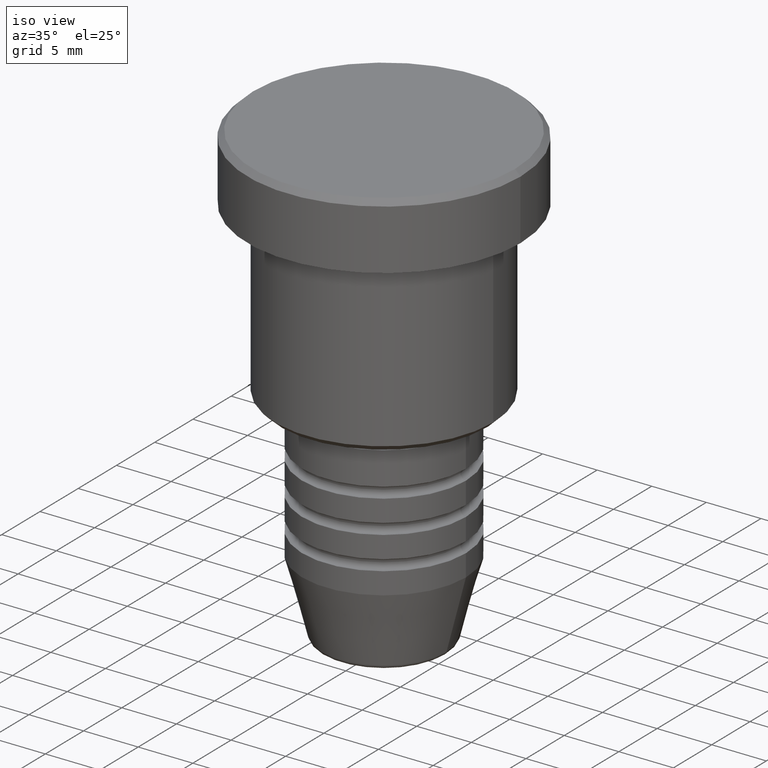
[diagram: clean part render]
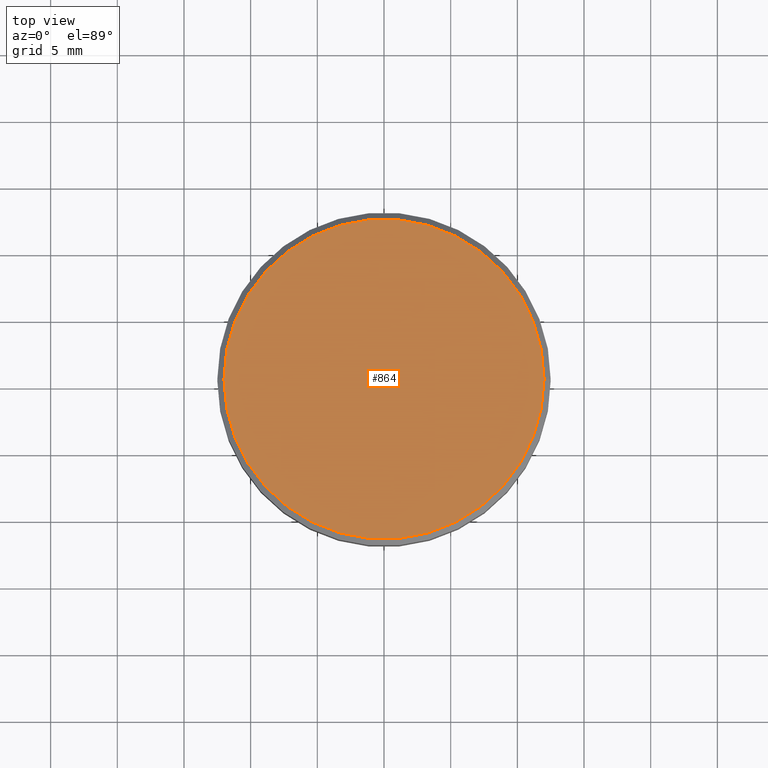
[diagram: tour spotlight — one face highlighted and labeled with its STEP entity id]
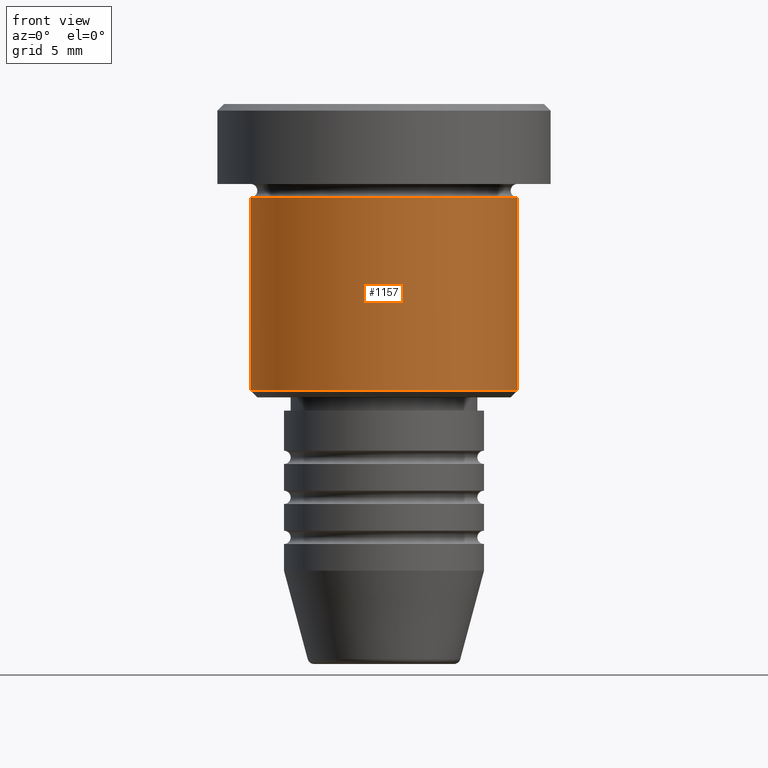
[diagram: tour spotlight — one face highlighted and labeled with its STEP entity id]
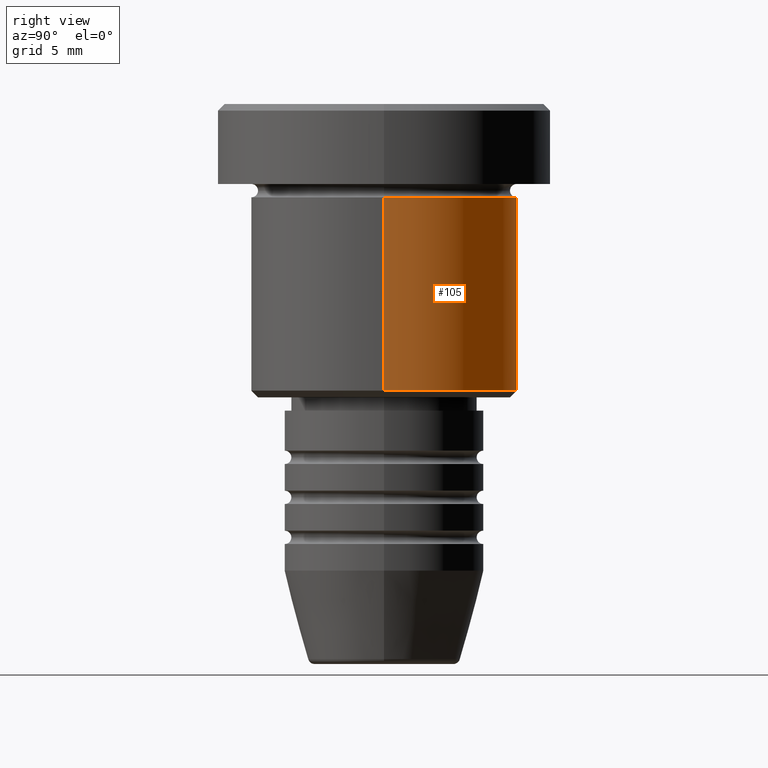
[diagram: tour spotlight — one face highlighted and labeled with its STEP entity id]
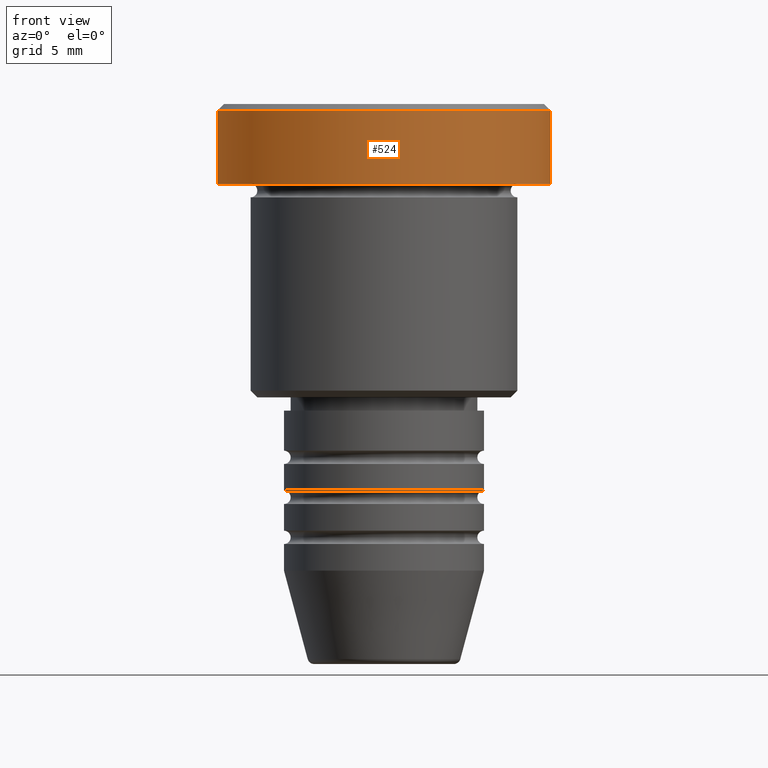
[diagram: tour spotlight — one face highlighted and labeled with its STEP entity id]
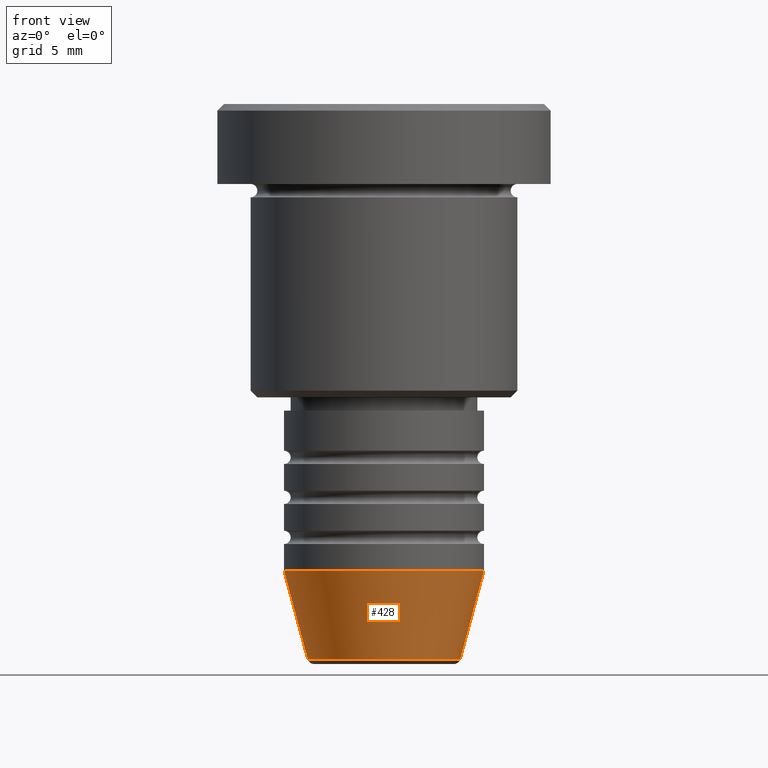
[diagram: tour spotlight — one face highlighted and labeled with its STEP entity id]
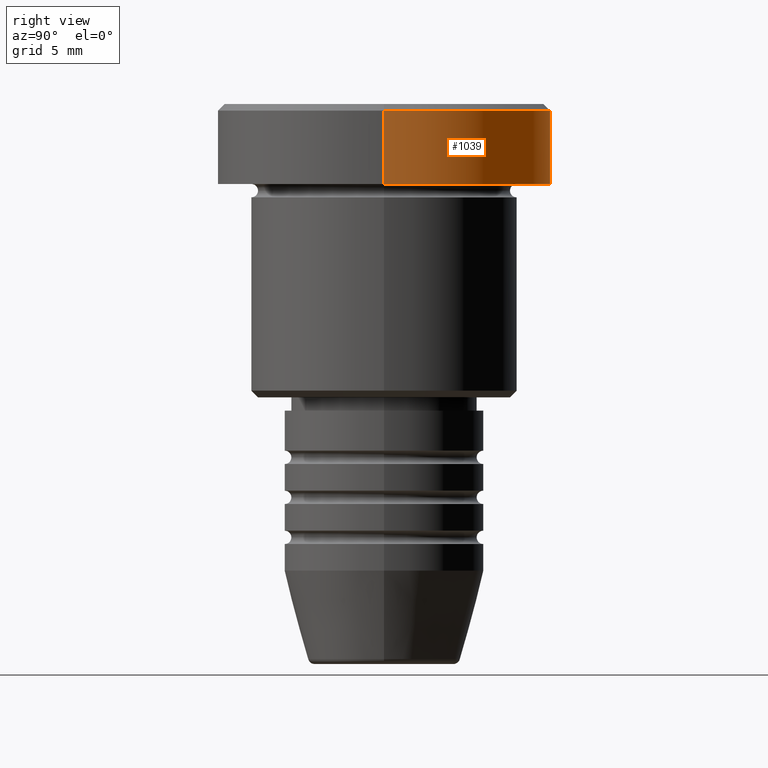
[diagram: tour spotlight — one face highlighted and labeled with its STEP entity id]
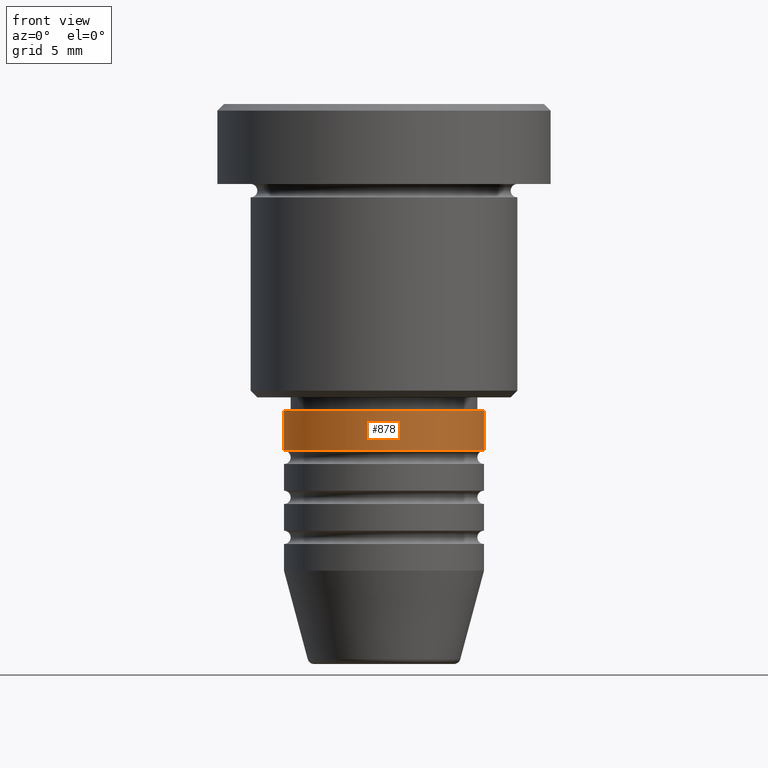
[diagram: tour spotlight — one face highlighted and labeled with its STEP entity id]
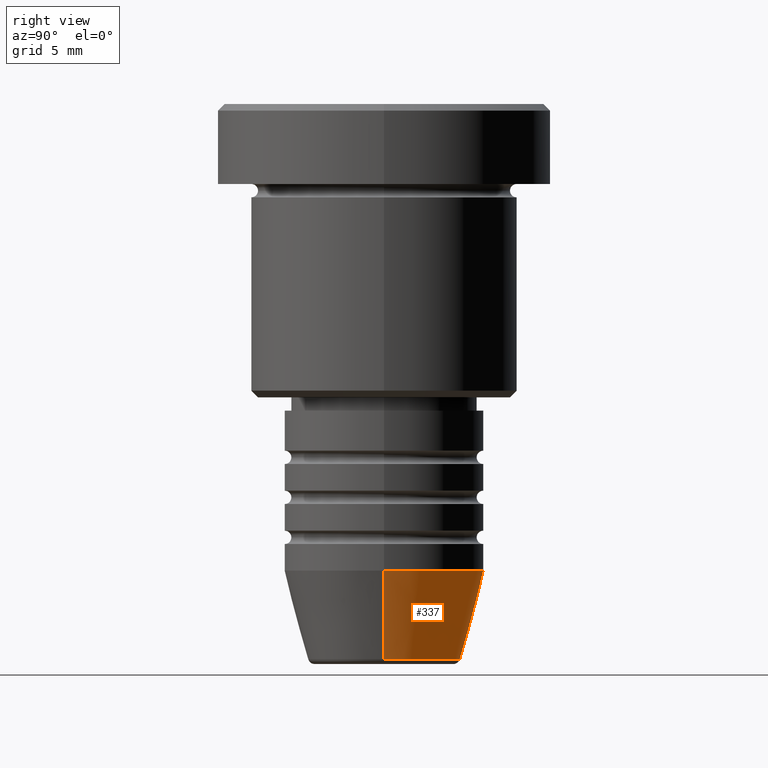
[diagram: tour spotlight — one face highlighted and labeled with its STEP entity id]
A machine part: a face-by-face anatomy tour. The part has 43 B-rep faces; the first image is the clean iso view, then the 8 largest visible faces are spotlighted one at a time (largest first), each with its STEP entity span.

Face 1 — top view, entity #864. In plain terms, the highlighted planar face has unit normal (0, -0, 1).
Definition (entity closure, byte-faithful):
#117 = CARTESIAN_POINT ( 'NONE',  ( 0.000000000000000000, 0.000000000000000000, 0.000000000000000000 ) ) ;
#198 = PLANE ( 'NONE',  #889 ) ;
#219 = CARTESIAN_POINT ( 'NONE',  ( 0.000000000000000000, 0.000000000000000000, 0.000000000000000000 ) ) ;
#248 = EDGE_LOOP ( 'NONE', ( #1085, #763 ) ) ;
#304 = DIRECTION ( 'NONE',  ( 0.000000000000000000, -0.000000000000000000, 1.000000000000000000 ) ) ;
#311 = VERTEX_POINT ( 'NONE', #771 ) ;
#325 = EDGE_CURVE ( 'NONE', #785, #311, #423, .T. ) ;
#327 = DIRECTION ( 'NONE',  ( -0.000000000000000000, -0.000000000000000000, 1.000000000000000000 ) ) ;
#329 = EDGE_CURVE ( 'NONE', #311, #785, #390, .T. ) ;
#390 = CIRCLE ( 'NONE', #556, 11.99999999999998224 ) ;
#410 = CARTESIAN_POINT ( 'NONE',  ( -11.99999999999998224, 0.000000000000000000, 0.000000000000000000 ) ) ;
#423 = CIRCLE ( 'NONE', #773, 11.99999999999998224 ) ;
#508 = DIRECTION ( 'NONE',  ( 1.000000000000000000, 0.000000000000000000, 0.000000000000000000 ) ) ;
#556 = AXIS2_PLACEMENT_3D ( 'NONE', #604, #327, #508 ) ;
#604 = CARTESIAN_POINT ( 'NONE',  ( 0.000000000000000000, 0.000000000000000000, 0.000000000000000000 ) ) ;
#610 = DIRECTION ( 'NONE',  ( -0.000000000000000000, -0.000000000000000000, 1.000000000000000000 ) ) ;
#670 = DIRECTION ( 'NONE',  ( 1.000000000000000000, 0.000000000000000000, 0.000000000000000000 ) ) ;
#682 = DIRECTION ( 'NONE',  ( 1.000000000000000000, 0.000000000000000000, 0.000000000000000000 ) ) ;
#763 = ORIENTED_EDGE ( 'NONE', *, *, #329, .T. ) ;
#771 = CARTESIAN_POINT ( 'NONE',  ( 11.99999999999998224, 1.500192328955506748E-15, 0.000000000000000000 ) ) ;
#773 = AXIS2_PLACEMENT_3D ( 'NONE', #219, #610, #682 ) ;
#785 = VERTEX_POINT ( 'NONE', #410 ) ;
#864 = ADVANCED_FACE ( 'NONE', ( #934 ), #198, .T. ) ;
#889 = AXIS2_PLACEMENT_3D ( 'NONE', #117, #304, #670 ) ;
#934 = FACE_OUTER_BOUND ( 'NONE', #248, .T. ) ;
#1085 = ORIENTED_EDGE ( 'NONE', *, *, #325, .T. ) ;

Face 2 — front view, entity #1157. In plain terms, the highlighted cylindrical surface (partial cylindrical patch) has radius 10 mm, axis along (-0, -0, 1).
Definition (entity closure, byte-faithful):
#64 = LINE ( 'NONE', #718, #628 ) ;
#66 = CARTESIAN_POINT ( 'NONE',  ( 0.000000000000000000, 0.000000000000000000, 0.000000000000000000 ) ) ;
#100 = DIRECTION ( 'NONE',  ( -0.000000000000000000, -0.000000000000000000, 1.000000000000000000 ) ) ;
#169 = DIRECTION ( 'NONE',  ( 1.000000000000000000, 0.000000000000000000, 0.000000000000000000 ) ) ;
#220 = ORIENTED_EDGE ( 'NONE', *, *, #1140, .F. ) ;
#226 = CARTESIAN_POINT ( 'NONE',  ( 10.00000000000000000, 0.000000000000000000, -21.49999999999999645 ) ) ;
#246 = EDGE_CURVE ( 'NONE', #374, #252, #64, .T. ) ;
#252 = VERTEX_POINT ( 'NONE', #725 ) ;
#253 = EDGE_CURVE ( 'NONE', #588, #252, #575, .T. ) ;
#257 = CARTESIAN_POINT ( 'NONE',  ( -10.00000000000000000, 1.224646799147353256E-15, -21.49999999999999645 ) ) ;
#320 = VECTOR ( 'NONE', #1178, 1000.000000000000000 ) ;
#374 = VERTEX_POINT ( 'NONE', #226 ) ;
#438 = CARTESIAN_POINT ( 'NONE',  ( -10.00000000000000000, 1.224646799147353256E-15, 0.000000000000000000 ) ) ;
#445 = LINE ( 'NONE', #438, #320 ) ;
#490 = DIRECTION ( 'NONE',  ( -1.000000000000000000, 0.000000000000000000, 0.000000000000000000 ) ) ;
#514 = AXIS2_PLACEMENT_3D ( 'NONE', #66, #1173, #169 ) ;
#561 = VERTEX_POINT ( 'NONE', #257 ) ;
#575 = CIRCLE ( 'NONE', #811, 10.00000000000000000 ) ;
#588 = VERTEX_POINT ( 'NONE', #1166 ) ;
#628 = VECTOR ( 'NONE', #100, 1000.000000000000000 ) ;
#650 = FACE_OUTER_BOUND ( 'NONE', #1104, .T. ) ;
#718 = CARTESIAN_POINT ( 'NONE',  ( 10.00000000000000000, 0.000000000000000000, 0.000000000000000000 ) ) ;
#725 = CARTESIAN_POINT ( 'NONE',  ( 10.00000000000000000, 0.000000000000000000, -6.999999999999996447 ) ) ;
#762 = AXIS2_PLACEMENT_3D ( 'NONE', #877, #1021, #490 ) ;
#811 = AXIS2_PLACEMENT_3D ( 'NONE', #819, #1094, #894 ) ;
#818 = ORIENTED_EDGE ( 'NONE', *, *, #246, .T. ) ;
#819 = CARTESIAN_POINT ( 'NONE',  ( 0.000000000000000000, 0.000000000000000000, -6.999999999999996447 ) ) ;
#877 = CARTESIAN_POINT ( 'NONE',  ( 0.000000000000000000, 0.000000000000000000, -21.49999999999999645 ) ) ;
#894 = DIRECTION ( 'NONE',  ( 1.000000000000000000, 0.000000000000000000, 0.000000000000000000 ) ) ;
#992 = EDGE_CURVE ( 'NONE', #561, #374, #1110, .T. ) ;
#1021 = DIRECTION ( 'NONE',  ( -0.000000000000000000, -0.000000000000000000, 1.000000000000000000 ) ) ;
#1073 = ORIENTED_EDGE ( 'NONE', *, *, #992, .T. ) ;
#1094 = DIRECTION ( 'NONE',  ( -0.000000000000000000, -0.000000000000000000, 1.000000000000000000 ) ) ;
#1104 = EDGE_LOOP ( 'NONE', ( #220, #1073, #818, #1106 ) ) ;
#1106 = ORIENTED_EDGE ( 'NONE', *, *, #253, .F. ) ;
#1110 = CIRCLE ( 'NONE', #762, 10.00000000000000000 ) ;
#1140 = EDGE_CURVE ( 'NONE', #561, #588, #445, .T. ) ;
#1154 = CYLINDRICAL_SURFACE ( 'NONE', #514, 10.00000000000000000 ) ;
#1157 = ADVANCED_FACE ( 'NONE', ( #650 ), #1154, .T. ) ;
#1166 = CARTESIAN_POINT ( 'NONE',  ( -10.00000000000000000, 1.224646799147353256E-15, -6.999999999999996447 ) ) ;
#1173 = DIRECTION ( 'NONE',  ( -0.000000000000000000, -0.000000000000000000, 1.000000000000000000 ) ) ;
#1178 = DIRECTION ( 'NONE',  ( -0.000000000000000000, -0.000000000000000000, 1.000000000000000000 ) ) ;

Face 3 — right view, entity #105. In plain terms, the highlighted cylindrical surface (partial cylindrical patch) has radius 10 mm, axis along (-0, -0, 1).
Definition (entity closure, byte-faithful):
#26 = CIRCLE ( 'NONE', #558, 10.00000000000000000 ) ;
#64 = LINE ( 'NONE', #718, #628 ) ;
#92 = DIRECTION ( 'NONE',  ( -0.000000000000000000, -0.000000000000000000, 1.000000000000000000 ) ) ;
#100 = DIRECTION ( 'NONE',  ( -0.000000000000000000, -0.000000000000000000, 1.000000000000000000 ) ) ;
#105 = ADVANCED_FACE ( 'NONE', ( #661 ), #397, .T. ) ;
#168 = CARTESIAN_POINT ( 'NONE',  ( 0.000000000000000000, 0.000000000000000000, -6.999999999999996447 ) ) ;
#226 = CARTESIAN_POINT ( 'NONE',  ( 10.00000000000000000, 0.000000000000000000, -21.49999999999999645 ) ) ;
#239 = EDGE_CURVE ( 'NONE', #374, #561, #1144, .T. ) ;
#246 = EDGE_CURVE ( 'NONE', #374, #252, #64, .T. ) ;
#252 = VERTEX_POINT ( 'NONE', #725 ) ;
#257 = CARTESIAN_POINT ( 'NONE',  ( -10.00000000000000000, 1.224646799147353256E-15, -21.49999999999999645 ) ) ;
#259 = ORIENTED_EDGE ( 'NONE', *, *, #239, .T. ) ;
#267 = ORIENTED_EDGE ( 'NONE', *, *, #1140, .T. ) ;
#268 = DIRECTION ( 'NONE',  ( -0.000000000000000000, -0.000000000000000000, 1.000000000000000000 ) ) ;
#320 = VECTOR ( 'NONE', #1178, 1000.000000000000000 ) ;
#374 = VERTEX_POINT ( 'NONE', #226 ) ;
#379 = DIRECTION ( 'NONE',  ( -0.000000000000000000, -0.000000000000000000, 1.000000000000000000 ) ) ;
#397 = CYLINDRICAL_SURFACE ( 'NONE', #848, 10.00000000000000000 ) ;
#438 = CARTESIAN_POINT ( 'NONE',  ( -10.00000000000000000, 1.224646799147353256E-15, 0.000000000000000000 ) ) ;
#445 = LINE ( 'NONE', #438, #320 ) ;
#558 = AXIS2_PLACEMENT_3D ( 'NONE', #168, #268, #642 ) ;
#561 = VERTEX_POINT ( 'NONE', #257 ) ;
#588 = VERTEX_POINT ( 'NONE', #1166 ) ;
#628 = VECTOR ( 'NONE', #100, 1000.000000000000000 ) ;
#642 = DIRECTION ( 'NONE',  ( 1.000000000000000000, 0.000000000000000000, 0.000000000000000000 ) ) ;
#661 = FACE_OUTER_BOUND ( 'NONE', #1116, .T. ) ;
#718 = CARTESIAN_POINT ( 'NONE',  ( 10.00000000000000000, 0.000000000000000000, 0.000000000000000000 ) ) ;
#725 = CARTESIAN_POINT ( 'NONE',  ( 10.00000000000000000, 0.000000000000000000, -6.999999999999996447 ) ) ;
#832 = CARTESIAN_POINT ( 'NONE',  ( 0.000000000000000000, 0.000000000000000000, 0.000000000000000000 ) ) ;
#840 = DIRECTION ( 'NONE',  ( 1.000000000000000000, 0.000000000000000000, 0.000000000000000000 ) ) ;
#848 = AXIS2_PLACEMENT_3D ( 'NONE', #832, #379, #840 ) ;
#1005 = ORIENTED_EDGE ( 'NONE', *, *, #1036, .F. ) ;
#1036 = EDGE_CURVE ( 'NONE', #252, #588, #26, .T. ) ;
#1062 = CARTESIAN_POINT ( 'NONE',  ( 0.000000000000000000, 0.000000000000000000, -21.49999999999999645 ) ) ;
#1116 = EDGE_LOOP ( 'NONE', ( #259, #267, #1005, #1182 ) ) ;
#1129 = AXIS2_PLACEMENT_3D ( 'NONE', #1062, #92, #1176 ) ;
#1140 = EDGE_CURVE ( 'NONE', #561, #588, #445, .T. ) ;
#1144 = CIRCLE ( 'NONE', #1129, 10.00000000000000000 ) ;
#1166 = CARTESIAN_POINT ( 'NONE',  ( -10.00000000000000000, 1.224646799147353256E-15, -6.999999999999996447 ) ) ;
#1176 = DIRECTION ( 'NONE',  ( -1.000000000000000000, 0.000000000000000000, 0.000000000000000000 ) ) ;
#1178 = DIRECTION ( 'NONE',  ( -0.000000000000000000, -0.000000000000000000, 1.000000000000000000 ) ) ;
#1182 = ORIENTED_EDGE ( 'NONE', *, *, #246, .F. ) ;

Face 4 — front view, entity #524. In plain terms, the highlighted cylindrical surface (partial cylindrical patch) has radius 12.5 mm, axis along (-0, -0, 1).
Definition (entity closure, byte-faithful):
#17 = DIRECTION ( 'NONE',  ( -0.000000000000000000, -0.000000000000000000, 1.000000000000000000 ) ) ;
#25 = EDGE_CURVE ( 'NONE', #545, #735, #122, .T. ) ;
#88 = CARTESIAN_POINT ( 'NONE',  ( -12.50000000000000000, 1.530808498934191521E-15, -5.999999999999996447 ) ) ;
#110 = DIRECTION ( 'NONE',  ( -0.000000000000000000, -0.000000000000000000, 1.000000000000000000 ) ) ;
#112 = VERTEX_POINT ( 'NONE', #295 ) ;
#115 = CARTESIAN_POINT ( 'NONE',  ( 0.000000000000000000, 0.000000000000000000, -5.999999999999996447 ) ) ;
#120 = ORIENTED_EDGE ( 'NONE', *, *, #1099, .T. ) ;
#122 = LINE ( 'NONE', #676, #203 ) ;
#133 = DIRECTION ( 'NONE',  ( -0.000000000000000000, -0.000000000000000000, 1.000000000000000000 ) ) ;
#141 = DIRECTION ( 'NONE',  ( 1.000000000000000000, 0.000000000000000000, 0.000000000000000000 ) ) ;
#203 = VECTOR ( 'NONE', #110, 1000.000000000000000 ) ;
#271 = CYLINDRICAL_SURFACE ( 'NONE', #411, 12.50000000000000000 ) ;
#281 = CIRCLE ( 'NONE', #871, 12.50000000000000000 ) ;
#295 = CARTESIAN_POINT ( 'NONE',  ( 12.50000000000000000, 0.000000000000000000, -5.999999999999996447 ) ) ;
#302 = CIRCLE ( 'NONE', #722, 12.50000000000000000 ) ;
#331 = CARTESIAN_POINT ( 'NONE',  ( 0.000000000000000000, 0.000000000000000000, -0.5000000000000125455 ) ) ;
#334 = VECTOR ( 'NONE', #133, 1000.000000000000000 ) ;
#347 = EDGE_CURVE ( 'NONE', #112, #772, #1141, .T. ) ;
#411 = AXIS2_PLACEMENT_3D ( 'NONE', #916, #997, #631 ) ;
#463 = ORIENTED_EDGE ( 'NONE', *, *, #25, .F. ) ;
#497 = CARTESIAN_POINT ( 'NONE',  ( 12.50000000000000000, 0.000000000000000000, -0.5000000000000125455 ) ) ;
#524 = ADVANCED_FACE ( 'NONE', ( #885 ), #271, .T. ) ;
#545 = VERTEX_POINT ( 'NONE', #88 ) ;
#571 = EDGE_LOOP ( 'NONE', ( #463, #120, #1054, #1161 ) ) ;
#607 = EDGE_CURVE ( 'NONE', #772, #735, #281, .T. ) ;
#631 = DIRECTION ( 'NONE',  ( 1.000000000000000000, 0.000000000000000000, 0.000000000000000000 ) ) ;
#676 = CARTESIAN_POINT ( 'NONE',  ( -12.50000000000000000, 1.530808498934191521E-15, 0.000000000000000000 ) ) ;
#722 = AXIS2_PLACEMENT_3D ( 'NONE', #115, #17, #843 ) ;
#735 = VERTEX_POINT ( 'NONE', #1089 ) ;
#772 = VERTEX_POINT ( 'NONE', #497 ) ;
#843 = DIRECTION ( 'NONE',  ( 1.000000000000000000, 0.000000000000000000, 0.000000000000000000 ) ) ;
#871 = AXIS2_PLACEMENT_3D ( 'NONE', #331, #957, #141 ) ;
#879 = CARTESIAN_POINT ( 'NONE',  ( 12.50000000000000000, 0.000000000000000000, 0.000000000000000000 ) ) ;
#885 = FACE_OUTER_BOUND ( 'NONE', #571, .T. ) ;
#916 = CARTESIAN_POINT ( 'NONE',  ( 0.000000000000000000, 0.000000000000000000, 0.000000000000000000 ) ) ;
#957 = DIRECTION ( 'NONE',  ( 0.000000000000000000, 0.000000000000000000, -1.000000000000000000 ) ) ;
#997 = DIRECTION ( 'NONE',  ( -0.000000000000000000, -0.000000000000000000, 1.000000000000000000 ) ) ;
#1054 = ORIENTED_EDGE ( 'NONE', *, *, #347, .T. ) ;
#1089 = CARTESIAN_POINT ( 'NONE',  ( -12.50000000000000000, 1.530808498934191521E-15, -0.5000000000000125455 ) ) ;
#1099 = EDGE_CURVE ( 'NONE', #545, #112, #302, .T. ) ;
#1141 = LINE ( 'NONE', #879, #334 ) ;
#1161 = ORIENTED_EDGE ( 'NONE', *, *, #607, .T. ) ;

Face 5 — front view, entity #428. In plain terms, the highlighted conical surface has half-angle 15 deg.
Definition (entity closure, byte-faithful):
#10 = VERTEX_POINT ( 'NONE', #308 ) ;
#35 = CARTESIAN_POINT ( 'NONE',  ( 0.000000000000000000, 0.000000000000000000, -34.99999999999999289 ) ) ;
#46 = CARTESIAN_POINT ( 'NONE',  ( -7.500000000000000000, 9.184850993605147944E-16, -34.99999999999999289 ) ) ;
#130 = VECTOR ( 'NONE', #1084, 1000.000000000000000 ) ;
#145 = AXIS2_PLACEMENT_3D ( 'NONE', #443, #1079, #284 ) ;
#254 = VECTOR ( 'NONE', #1041, 1000.000000000000000 ) ;
#274 = EDGE_CURVE ( 'NONE', #994, #369, #680, .T. ) ;
#284 = DIRECTION ( 'NONE',  ( 1.000000000000000000, 0.000000000000000000, 0.000000000000000000 ) ) ;
#291 = DIRECTION ( 'NONE',  ( 1.000000000000000000, 0.000000000000000000, 0.000000000000000000 ) ) ;
#293 = EDGE_CURVE ( 'NONE', #1070, #10, #358, .T. ) ;
#308 = CARTESIAN_POINT ( 'NONE',  ( 7.500000000000000000, 0.000000000000000000, -34.99999999999999289 ) ) ;
#309 = FACE_OUTER_BOUND ( 'NONE', #526, .T. ) ;
#335 = CONICAL_SURFACE ( 'NONE', #812, 7.500000000000000000, 0.2617993877991500740 ) ;
#358 = CIRCLE ( 'NONE', #849, 7.500000000000000000 ) ;
#369 = VERTEX_POINT ( 'NONE', #692 ) ;
#380 = EDGE_CURVE ( 'NONE', #369, #10, #959, .T. ) ;
#419 = CARTESIAN_POINT ( 'NONE',  ( 7.500000000000000000, 0.000000000000000000, -34.99999999999999289 ) ) ;
#428 = ADVANCED_FACE ( 'NONE', ( #309 ), #335, .T. ) ;
#429 = DIRECTION ( 'NONE',  ( 1.000000000000000000, 0.000000000000000000, 0.000000000000000000 ) ) ;
#443 = CARTESIAN_POINT ( 'NONE',  ( 0.000000000000000000, 0.000000000000000000, -41.62940952255124927 ) ) ;
#469 = ORIENTED_EDGE ( 'NONE', *, *, #380, .T. ) ;
#489 = EDGE_CURVE ( 'NONE', #994, #1070, #525, .T. ) ;
#504 = DIRECTION ( 'NONE',  ( -0.000000000000000000, -0.000000000000000000, 1.000000000000000000 ) ) ;
#521 = CARTESIAN_POINT ( 'NONE',  ( -5.723655072137192157, 8.097153428560737887E-16, -41.62940952255124927 ) ) ;
#525 = LINE ( 'NONE', #705, #130 ) ;
#526 = EDGE_LOOP ( 'NONE', ( #940, #788, #469, #880 ) ) ;
#680 = CIRCLE ( 'NONE', #145, 5.723655072137192157 ) ;
#692 = CARTESIAN_POINT ( 'NONE',  ( 5.723655072137192157, 0.000000000000000000, -41.62940952255124927 ) ) ;
#705 = CARTESIAN_POINT ( 'NONE',  ( -7.500000000000000000, 9.184850993605147944E-16, -34.99999999999999289 ) ) ;
#788 = ORIENTED_EDGE ( 'NONE', *, *, #274, .T. ) ;
#812 = AXIS2_PLACEMENT_3D ( 'NONE', #35, #504, #429 ) ;
#849 = AXIS2_PLACEMENT_3D ( 'NONE', #939, #1117, #291 ) ;
#880 = ORIENTED_EDGE ( 'NONE', *, *, #293, .F. ) ;
#939 = CARTESIAN_POINT ( 'NONE',  ( 0.000000000000000000, 0.000000000000000000, -34.99999999999999289 ) ) ;
#940 = ORIENTED_EDGE ( 'NONE', *, *, #489, .F. ) ;
#959 = LINE ( 'NONE', #419, #254 ) ;
#994 = VERTEX_POINT ( 'NONE', #521 ) ;
#1041 = DIRECTION ( 'NONE',  ( 0.2588190451025213501, 0.000000000000000000, 0.9659258262890680902 ) ) ;
#1070 = VERTEX_POINT ( 'NONE', #46 ) ;
#1079 = DIRECTION ( 'NONE',  ( -0.000000000000000000, -0.000000000000000000, 1.000000000000000000 ) ) ;
#1084 = DIRECTION ( 'NONE',  ( -0.2588190451025213501, 3.169619151431772337E-17, 0.9659258262890680902 ) ) ;
#1117 = DIRECTION ( 'NONE',  ( -0.000000000000000000, -0.000000000000000000, 1.000000000000000000 ) ) ;

Face 6 — right view, entity #1039. In plain terms, the highlighted cylindrical surface (partial cylindrical patch) has radius 12.5 mm, axis along (-0, -0, 1).
Definition (entity closure, byte-faithful):
#19 = AXIS2_PLACEMENT_3D ( 'NONE', #387, #468, #30 ) ;
#24 = AXIS2_PLACEMENT_3D ( 'NONE', #95, #622, #153 ) ;
#25 = EDGE_CURVE ( 'NONE', #545, #735, #122, .T. ) ;
#30 = DIRECTION ( 'NONE',  ( 1.000000000000000000, 0.000000000000000000, 0.000000000000000000 ) ) ;
#88 = CARTESIAN_POINT ( 'NONE',  ( -12.50000000000000000, 1.530808498934191521E-15, -5.999999999999996447 ) ) ;
#95 = CARTESIAN_POINT ( 'NONE',  ( 0.000000000000000000, 0.000000000000000000, 0.000000000000000000 ) ) ;
#102 = EDGE_CURVE ( 'NONE', #735, #772, #1128, .T. ) ;
#110 = DIRECTION ( 'NONE',  ( -0.000000000000000000, -0.000000000000000000, 1.000000000000000000 ) ) ;
#112 = VERTEX_POINT ( 'NONE', #295 ) ;
#122 = LINE ( 'NONE', #676, #203 ) ;
#133 = DIRECTION ( 'NONE',  ( -0.000000000000000000, -0.000000000000000000, 1.000000000000000000 ) ) ;
#153 = DIRECTION ( 'NONE',  ( 1.000000000000000000, 0.000000000000000000, 0.000000000000000000 ) ) ;
#203 = VECTOR ( 'NONE', #110, 1000.000000000000000 ) ;
#295 = CARTESIAN_POINT ( 'NONE',  ( 12.50000000000000000, 0.000000000000000000, -5.999999999999996447 ) ) ;
#299 = CIRCLE ( 'NONE', #665, 12.50000000000000000 ) ;
#334 = VECTOR ( 'NONE', #133, 1000.000000000000000 ) ;
#340 = ORIENTED_EDGE ( 'NONE', *, *, #347, .F. ) ;
#347 = EDGE_CURVE ( 'NONE', #112, #772, #1141, .T. ) ;
#387 = CARTESIAN_POINT ( 'NONE',  ( 0.000000000000000000, 0.000000000000000000, -0.5000000000000125455 ) ) ;
#468 = DIRECTION ( 'NONE',  ( 0.000000000000000000, 0.000000000000000000, -1.000000000000000000 ) ) ;
#497 = CARTESIAN_POINT ( 'NONE',  ( 12.50000000000000000, 0.000000000000000000, -0.5000000000000125455 ) ) ;
#545 = VERTEX_POINT ( 'NONE', #88 ) ;
#622 = DIRECTION ( 'NONE',  ( -0.000000000000000000, -0.000000000000000000, 1.000000000000000000 ) ) ;
#630 = EDGE_CURVE ( 'NONE', #112, #545, #299, .T. ) ;
#641 = ORIENTED_EDGE ( 'NONE', *, *, #25, .T. ) ;
#665 = AXIS2_PLACEMENT_3D ( 'NONE', #858, #674, #952 ) ;
#674 = DIRECTION ( 'NONE',  ( -0.000000000000000000, -0.000000000000000000, 1.000000000000000000 ) ) ;
#676 = CARTESIAN_POINT ( 'NONE',  ( -12.50000000000000000, 1.530808498934191521E-15, 0.000000000000000000 ) ) ;
#735 = VERTEX_POINT ( 'NONE', #1089 ) ;
#772 = VERTEX_POINT ( 'NONE', #497 ) ;
#858 = CARTESIAN_POINT ( 'NONE',  ( 0.000000000000000000, 0.000000000000000000, -5.999999999999996447 ) ) ;
#879 = CARTESIAN_POINT ( 'NONE',  ( 12.50000000000000000, 0.000000000000000000, 0.000000000000000000 ) ) ;
#886 = EDGE_LOOP ( 'NONE', ( #1061, #641, #1080, #340 ) ) ;
#909 = CYLINDRICAL_SURFACE ( 'NONE', #24, 12.50000000000000000 ) ;
#952 = DIRECTION ( 'NONE',  ( 1.000000000000000000, 0.000000000000000000, 0.000000000000000000 ) ) ;
#995 = FACE_OUTER_BOUND ( 'NONE', #886, .T. ) ;
#1039 = ADVANCED_FACE ( 'NONE', ( #995 ), #909, .T. ) ;
#1061 = ORIENTED_EDGE ( 'NONE', *, *, #630, .T. ) ;
#1080 = ORIENTED_EDGE ( 'NONE', *, *, #102, .T. ) ;
#1089 = CARTESIAN_POINT ( 'NONE',  ( -12.50000000000000000, 1.530808498934191521E-15, -0.5000000000000125455 ) ) ;
#1128 = CIRCLE ( 'NONE', #19, 12.50000000000000000 ) ;
#1141 = LINE ( 'NONE', #879, #334 ) ;

Face 7 — front view, entity #878. In plain terms, the highlighted cylindrical surface (partial cylindrical patch) has radius 7.5 mm, axis along (-0, -0, 1).
Definition (entity closure, byte-faithful):
#13 = ORIENTED_EDGE ( 'NONE', *, *, #583, .T. ) ;
#70 = VERTEX_POINT ( 'NONE', #928 ) ;
#76 = CARTESIAN_POINT ( 'NONE',  ( 7.500000000000000000, 0.000000000000000000, 0.000000000000000000 ) ) ;
#80 = CARTESIAN_POINT ( 'NONE',  ( 7.500000000000000000, 0.000000000000000000, -23.00000000000000000 ) ) ;
#113 = VECTOR ( 'NONE', #1059, 1000.000000000000000 ) ;
#232 = VERTEX_POINT ( 'NONE', #805 ) ;
#247 = CARTESIAN_POINT ( 'NONE',  ( -7.500000000000000000, 9.184850993605147944E-16, -23.00000000000000000 ) ) ;
#272 = VERTEX_POINT ( 'NONE', #80 ) ;
#283 = AXIS2_PLACEMENT_3D ( 'NONE', #989, #1081, #546 ) ;
#287 = ORIENTED_EDGE ( 'NONE', *, *, #645, .F. ) ;
#326 = CARTESIAN_POINT ( 'NONE',  ( 0.000000000000000000, 0.000000000000000000, -23.00000000000000000 ) ) ;
#373 = CARTESIAN_POINT ( 'NONE',  ( 0.000000000000000000, 0.000000000000000000, 0.000000000000000000 ) ) ;
#440 = DIRECTION ( 'NONE',  ( -0.000000000000000000, -0.000000000000000000, 1.000000000000000000 ) ) ;
#456 = VERTEX_POINT ( 'NONE', #247 ) ;
#460 = FACE_OUTER_BOUND ( 'NONE', #672, .T. ) ;
#488 = EDGE_CURVE ( 'NONE', #232, #456, #990, .T. ) ;
#516 = DIRECTION ( 'NONE',  ( 1.000000000000000000, 0.000000000000000000, 0.000000000000000000 ) ) ;
#540 = LINE ( 'NONE', #76, #789 ) ;
#546 = DIRECTION ( 'NONE',  ( 1.000000000000000000, 0.000000000000000000, 0.000000000000000000 ) ) ;
#559 = CIRCLE ( 'NONE', #283, 7.500000000000000000 ) ;
#583 = EDGE_CURVE ( 'NONE', #70, #272, #540, .T. ) ;
#613 = AXIS2_PLACEMENT_3D ( 'NONE', #326, #1050, #516 ) ;
#645 = EDGE_CURVE ( 'NONE', #456, #272, #1109, .T. ) ;
#672 = EDGE_LOOP ( 'NONE', ( #1020, #1101, #13, #287 ) ) ;
#734 = DIRECTION ( 'NONE',  ( -0.000000000000000000, -0.000000000000000000, 1.000000000000000000 ) ) ;
#789 = VECTOR ( 'NONE', #440, 1000.000000000000000 ) ;
#805 = CARTESIAN_POINT ( 'NONE',  ( -7.500000000000000000, 9.184850993605147944E-16, -25.99999999999997513 ) ) ;
#878 = ADVANCED_FACE ( 'NONE', ( #460 ), #1179, .T. ) ;
#904 = CARTESIAN_POINT ( 'NONE',  ( -7.500000000000000000, 9.184850993605147944E-16, 0.000000000000000000 ) ) ;
#928 = CARTESIAN_POINT ( 'NONE',  ( 7.500000000000000000, 0.000000000000000000, -25.99999999999997513 ) ) ;
#989 = CARTESIAN_POINT ( 'NONE',  ( 0.000000000000000000, 0.000000000000000000, -25.99999999999997513 ) ) ;
#990 = LINE ( 'NONE', #904, #113 ) ;
#1019 = AXIS2_PLACEMENT_3D ( 'NONE', #373, #734, #1091 ) ;
#1020 = ORIENTED_EDGE ( 'NONE', *, *, #488, .F. ) ;
#1023 = EDGE_CURVE ( 'NONE', #232, #70, #559, .T. ) ;
#1050 = DIRECTION ( 'NONE',  ( -0.000000000000000000, -0.000000000000000000, 1.000000000000000000 ) ) ;
#1059 = DIRECTION ( 'NONE',  ( -0.000000000000000000, -0.000000000000000000, 1.000000000000000000 ) ) ;
#1081 = DIRECTION ( 'NONE',  ( -0.000000000000000000, -0.000000000000000000, 1.000000000000000000 ) ) ;
#1091 = DIRECTION ( 'NONE',  ( 1.000000000000000000, 0.000000000000000000, 0.000000000000000000 ) ) ;
#1101 = ORIENTED_EDGE ( 'NONE', *, *, #1023, .T. ) ;
#1109 = CIRCLE ( 'NONE', #613, 7.500000000000000000 ) ;
#1179 = CYLINDRICAL_SURFACE ( 'NONE', #1019, 7.500000000000000000 ) ;

Face 8 — right view, entity #337. In plain terms, the highlighted conical surface has half-angle 15 deg.
Definition (entity closure, byte-faithful):
#10 = VERTEX_POINT ( 'NONE', #308 ) ;
#46 = CARTESIAN_POINT ( 'NONE',  ( -7.500000000000000000, 9.184850993605147944E-16, -34.99999999999999289 ) ) ;
#57 = CONICAL_SURFACE ( 'NONE', #1093, 7.500000000000000000, 0.2617993877991500740 ) ;
#58 = AXIS2_PLACEMENT_3D ( 'NONE', #783, #534, #636 ) ;
#130 = VECTOR ( 'NONE', #1084, 1000.000000000000000 ) ;
#138 = CARTESIAN_POINT ( 'NONE',  ( 0.000000000000000000, 0.000000000000000000, -34.99999999999999289 ) ) ;
#150 = DIRECTION ( 'NONE',  ( 1.000000000000000000, 0.000000000000000000, 0.000000000000000000 ) ) ;
#212 = EDGE_LOOP ( 'NONE', ( #285, #235, #551, #1087 ) ) ;
#235 = ORIENTED_EDGE ( 'NONE', *, *, #489, .T. ) ;
#254 = VECTOR ( 'NONE', #1041, 1000.000000000000000 ) ;
#285 = ORIENTED_EDGE ( 'NONE', *, *, #713, .T. ) ;
#308 = CARTESIAN_POINT ( 'NONE',  ( 7.500000000000000000, 0.000000000000000000, -34.99999999999999289 ) ) ;
#314 = FACE_OUTER_BOUND ( 'NONE', #212, .T. ) ;
#337 = ADVANCED_FACE ( 'NONE', ( #314 ), #57, .T. ) ;
#369 = VERTEX_POINT ( 'NONE', #692 ) ;
#380 = EDGE_CURVE ( 'NONE', #369, #10, #959, .T. ) ;
#419 = CARTESIAN_POINT ( 'NONE',  ( 7.500000000000000000, 0.000000000000000000, -34.99999999999999289 ) ) ;
#489 = EDGE_CURVE ( 'NONE', #994, #1070, #525, .T. ) ;
#521 = CARTESIAN_POINT ( 'NONE',  ( -5.723655072137192157, 8.097153428560737887E-16, -41.62940952255124927 ) ) ;
#525 = LINE ( 'NONE', #705, #130 ) ;
#534 = DIRECTION ( 'NONE',  ( -0.000000000000000000, -0.000000000000000000, 1.000000000000000000 ) ) ;
#551 = ORIENTED_EDGE ( 'NONE', *, *, #664, .F. ) ;
#592 = CIRCLE ( 'NONE', #58, 5.723655072137192157 ) ;
#636 = DIRECTION ( 'NONE',  ( 1.000000000000000000, 0.000000000000000000, 0.000000000000000000 ) ) ;
#664 = EDGE_CURVE ( 'NONE', #10, #1070, #760, .T. ) ;
#681 = AXIS2_PLACEMENT_3D ( 'NONE', #138, #687, #863 ) ;
#687 = DIRECTION ( 'NONE',  ( -0.000000000000000000, -0.000000000000000000, 1.000000000000000000 ) ) ;
#692 = CARTESIAN_POINT ( 'NONE',  ( 5.723655072137192157, 0.000000000000000000, -41.62940952255124927 ) ) ;
#705 = CARTESIAN_POINT ( 'NONE',  ( -7.500000000000000000, 9.184850993605147944E-16, -34.99999999999999289 ) ) ;
#713 = EDGE_CURVE ( 'NONE', #369, #994, #592, .T. ) ;
#760 = CIRCLE ( 'NONE', #681, 7.500000000000000000 ) ;
#775 = CARTESIAN_POINT ( 'NONE',  ( 0.000000000000000000, 0.000000000000000000, -34.99999999999999289 ) ) ;
#783 = CARTESIAN_POINT ( 'NONE',  ( 0.000000000000000000, 0.000000000000000000, -41.62940952255124927 ) ) ;
#863 = DIRECTION ( 'NONE',  ( 1.000000000000000000, 0.000000000000000000, 0.000000000000000000 ) ) ;
#959 = LINE ( 'NONE', #419, #254 ) ;
#963 = DIRECTION ( 'NONE',  ( -0.000000000000000000, -0.000000000000000000, 1.000000000000000000 ) ) ;
#994 = VERTEX_POINT ( 'NONE', #521 ) ;
#1041 = DIRECTION ( 'NONE',  ( 0.2588190451025213501, 0.000000000000000000, 0.9659258262890680902 ) ) ;
#1070 = VERTEX_POINT ( 'NONE', #46 ) ;
#1084 = DIRECTION ( 'NONE',  ( -0.2588190451025213501, 3.169619151431772337E-17, 0.9659258262890680902 ) ) ;
#1087 = ORIENTED_EDGE ( 'NONE', *, *, #380, .F. ) ;
#1093 = AXIS2_PLACEMENT_3D ( 'NONE', #775, #963, #150 ) ;